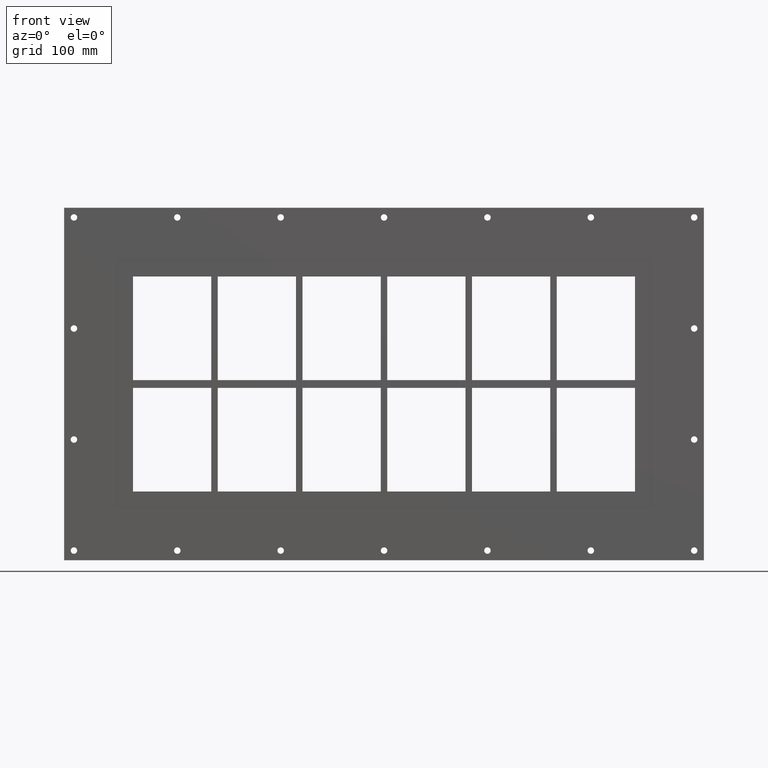
[diagram: clean part render]
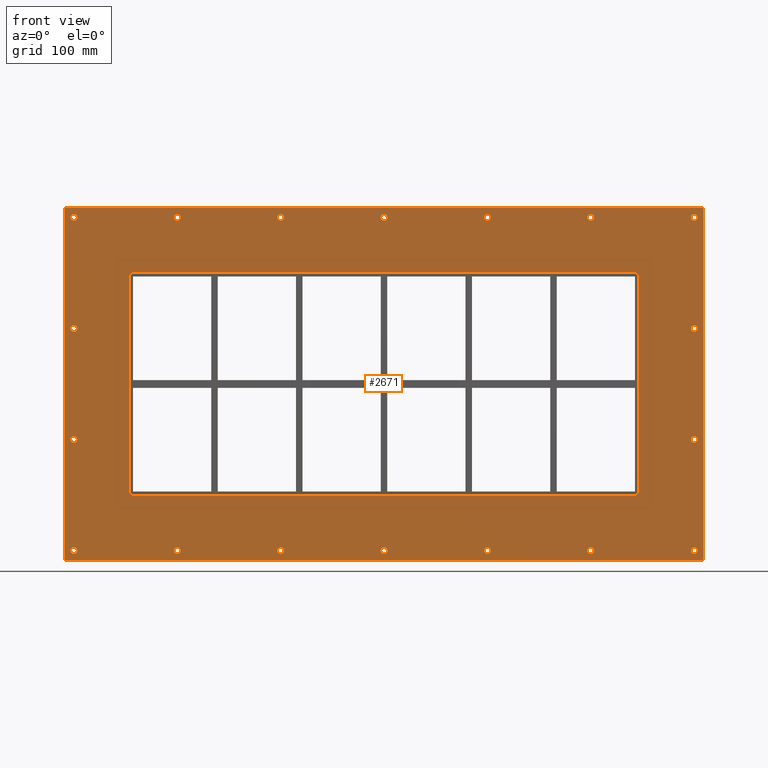
[diagram: same view with one face highlighted and labeled with its STEP entity id]
A machine part, front view. The second image highlights one B-rep face of the part: STEP entity #2671.
In plain terms, the highlighted planar face has unit normal (0, 1, 0).
Its self-contained STEP definition (entity closure, byte-faithful):
#84=CARTESIAN_POINT('',(-472.50000000000006,0.0,-256.5));
#85=VERTEX_POINT('',#84);
#86=CARTESIAN_POINT('',(-477.50000000000006,0.0,-256.5));
#87=DIRECTION('',(0.0,1.0,0.0));
#88=DIRECTION('',(1.0,0.0,0.0));
#89=AXIS2_PLACEMENT_3D('',#86,#87,#88);
#90=CIRCLE('',#89,5.0);
#91=EDGE_CURVE('',#85,#85,#90,.T.);
#112=CARTESIAN_POINT('',(482.69999999999987,0.0,-85.499999999999943));
#113=VERTEX_POINT('',#112);
#114=CARTESIAN_POINT('',(477.69999999999987,0.0,-85.499999999999943));
#115=DIRECTION('',(0.0,1.0,0.0));
#116=DIRECTION('',(1.0,0.0,0.0));
#117=AXIS2_PLACEMENT_3D('',#114,#115,#116);
#118=CIRCLE('',#117,5.0);
#119=EDGE_CURVE('',#113,#113,#118,.T.);
#140=CARTESIAN_POINT('',(-472.50000000000006,0.0,-85.499999999999943));
#141=VERTEX_POINT('',#140);
#142=CARTESIAN_POINT('',(-477.50000000000006,0.0,-85.499999999999943));
#143=DIRECTION('',(0.0,1.0,0.0));
#144=DIRECTION('',(1.0,0.0,0.0));
#145=AXIS2_PLACEMENT_3D('',#142,#143,#144);
#146=CIRCLE('',#145,5.0);
#147=EDGE_CURVE('',#141,#141,#146,.T.);
#168=CARTESIAN_POINT('',(482.69999999999987,0.0,85.500000000000043));
#169=VERTEX_POINT('',#168);
#170=CARTESIAN_POINT('',(477.69999999999987,0.0,85.500000000000043));
#171=DIRECTION('',(0.0,1.0,0.0));
#172=DIRECTION('',(1.0,0.0,0.0));
#173=AXIS2_PLACEMENT_3D('',#170,#171,#172);
#174=CIRCLE('',#173,5.0);
#175=EDGE_CURVE('',#169,#169,#174,.T.);
#196=CARTESIAN_POINT('',(-472.50000000000006,0.0,85.500000000000043));
#197=VERTEX_POINT('',#196);
#198=CARTESIAN_POINT('',(-477.50000000000006,0.0,85.500000000000043));
#199=DIRECTION('',(0.0,1.0,0.0));
#200=DIRECTION('',(1.0,0.0,0.0));
#201=AXIS2_PLACEMENT_3D('',#198,#199,#200);
#202=CIRCLE('',#201,5.0);
#203=EDGE_CURVE('',#197,#197,#202,.T.);
#224=CARTESIAN_POINT('',(-313.30000000000007,0.0,256.5));
#225=VERTEX_POINT('',#224);
#226=CARTESIAN_POINT('',(-318.30000000000007,0.0,256.5));
#227=DIRECTION('',(0.0,1.0,0.0));
#228=DIRECTION('',(1.0,0.0,0.0));
#229=AXIS2_PLACEMENT_3D('',#226,#227,#228);
#230=CIRCLE('',#229,5.0);
#231=EDGE_CURVE('',#225,#225,#230,.T.);
#252=CARTESIAN_POINT('',(-313.30000000000007,0.0,-256.5));
#253=VERTEX_POINT('',#252);
#254=CARTESIAN_POINT('',(-318.30000000000007,0.0,-256.5));
#255=DIRECTION('',(0.0,1.0,0.0));
#256=DIRECTION('',(1.0,0.0,0.0));
#257=AXIS2_PLACEMENT_3D('',#254,#255,#256);
#258=CIRCLE('',#257,5.0);
#259=EDGE_CURVE('',#253,#253,#258,.T.);
#280=CARTESIAN_POINT('',(-154.10000000000008,0.0,256.5));
#281=VERTEX_POINT('',#280);
#282=CARTESIAN_POINT('',(-159.10000000000008,0.0,256.5));
#283=DIRECTION('',(0.0,1.0,0.0));
#284=DIRECTION('',(1.0,0.0,0.0));
#285=AXIS2_PLACEMENT_3D('',#282,#283,#284);
#286=CIRCLE('',#285,5.0);
#287=EDGE_CURVE('',#281,#281,#286,.T.);
#308=CARTESIAN_POINT('',(-154.10000000000008,0.0,-256.5));
#309=VERTEX_POINT('',#308);
#310=CARTESIAN_POINT('',(-159.10000000000008,0.0,-256.5));
#311=DIRECTION('',(0.0,1.0,0.0));
#312=DIRECTION('',(1.0,0.0,0.0));
#313=AXIS2_PLACEMENT_3D('',#310,#311,#312);
#314=CIRCLE('',#313,5.0);
#315=EDGE_CURVE('',#309,#309,#314,.T.);
#336=CARTESIAN_POINT('',(5.099999999999927,0.0,256.5));
#337=VERTEX_POINT('',#336);
#338=CARTESIAN_POINT('',(0.099999999999927,0.0,256.5));
#339=DIRECTION('',(0.0,1.0,0.0));
#340=DIRECTION('',(1.0,0.0,0.0));
#341=AXIS2_PLACEMENT_3D('',#338,#339,#340);
#342=CIRCLE('',#341,5.0);
#343=EDGE_CURVE('',#337,#337,#342,.T.);
#364=CARTESIAN_POINT('',(5.099999999999927,0.0,-256.5));
#365=VERTEX_POINT('',#364);
#366=CARTESIAN_POINT('',(0.099999999999927,0.0,-256.5));
#367=DIRECTION('',(0.0,1.0,0.0));
#368=DIRECTION('',(1.0,0.0,0.0));
#369=AXIS2_PLACEMENT_3D('',#366,#367,#368);
#370=CIRCLE('',#369,5.0);
#371=EDGE_CURVE('',#365,#365,#370,.T.);
#392=CARTESIAN_POINT('',(164.29999999999984,0.0,256.5));
#393=VERTEX_POINT('',#392);
#394=CARTESIAN_POINT('',(159.29999999999987,0.0,256.5));
#395=DIRECTION('',(0.0,1.0,0.0));
#396=DIRECTION('',(1.0,0.0,0.0));
#397=AXIS2_PLACEMENT_3D('',#394,#395,#396);
#398=CIRCLE('',#397,5.0);
#399=EDGE_CURVE('',#393,#393,#398,.T.);
#420=CARTESIAN_POINT('',(164.29999999999984,0.0,-256.5));
#421=VERTEX_POINT('',#420);
#422=CARTESIAN_POINT('',(159.29999999999987,0.0,-256.5));
#423=DIRECTION('',(0.0,1.0,0.0));
#424=DIRECTION('',(1.0,0.0,0.0));
#425=AXIS2_PLACEMENT_3D('',#422,#423,#424);
#426=CIRCLE('',#425,5.0);
#427=EDGE_CURVE('',#421,#421,#426,.T.);
#448=CARTESIAN_POINT('',(323.49999999999989,0.0,256.5));
#449=VERTEX_POINT('',#448);
#450=CARTESIAN_POINT('',(318.49999999999989,0.0,256.5));
#451=DIRECTION('',(0.0,1.0,0.0));
#452=DIRECTION('',(1.0,0.0,0.0));
#453=AXIS2_PLACEMENT_3D('',#450,#451,#452);
#454=CIRCLE('',#453,5.0);
#455=EDGE_CURVE('',#449,#449,#454,.T.);
#476=CARTESIAN_POINT('',(323.49999999999989,0.0,-256.5));
#477=VERTEX_POINT('',#476);
#478=CARTESIAN_POINT('',(318.49999999999989,0.0,-256.5));
#479=DIRECTION('',(0.0,1.0,0.0));
#480=DIRECTION('',(1.0,0.0,0.0));
#481=AXIS2_PLACEMENT_3D('',#478,#479,#480);
#482=CIRCLE('',#481,5.0);
#483=EDGE_CURVE('',#477,#477,#482,.T.);
#504=CARTESIAN_POINT('',(482.69999999999987,0.0,-256.5));
#505=VERTEX_POINT('',#504);
#506=CARTESIAN_POINT('',(477.69999999999987,0.0,-256.5));
#507=DIRECTION('',(0.0,1.0,0.0));
#508=DIRECTION('',(1.0,0.0,0.0));
#509=AXIS2_PLACEMENT_3D('',#506,#507,#508);
#510=CIRCLE('',#509,5.0);
#511=EDGE_CURVE('',#505,#505,#510,.T.);
#532=CARTESIAN_POINT('',(-472.50000000000006,0.0,256.5));
#533=VERTEX_POINT('',#532);
#534=CARTESIAN_POINT('',(-477.50000000000006,0.0,256.5));
#535=DIRECTION('',(0.0,1.0,0.0));
#536=DIRECTION('',(1.0,0.0,0.0));
#537=AXIS2_PLACEMENT_3D('',#534,#535,#536);
#538=CIRCLE('',#537,5.0);
#539=EDGE_CURVE('',#533,#533,#538,.T.);
#560=CARTESIAN_POINT('',(482.69999999999987,0.0,256.5));
#561=VERTEX_POINT('',#560);
#562=CARTESIAN_POINT('',(477.69999999999987,0.0,256.5));
#563=DIRECTION('',(0.0,1.0,0.0));
#564=DIRECTION('',(1.0,0.0,0.0));
#565=AXIS2_PLACEMENT_3D('',#562,#563,#564);
#566=CIRCLE('',#565,5.0);
#567=EDGE_CURVE('',#561,#561,#566,.T.);
#2508=CARTESIAN_POINT('',(0.0,0.0,1.747293E-014));
#2509=DIRECTION('',(0.0,1.0,0.0));
#2510=DIRECTION('',(0.0,0.0,1.0));
#2511=AXIS2_PLACEMENT_3D('',#2508,#2509,#2510);
#2512=PLANE('',#2511);
#2513=CARTESIAN_POINT('',(-492.50000000000006,0.0,271.50000000000006));
#2514=VERTEX_POINT('',#2513);
#2515=CARTESIAN_POINT('',(492.50000000000006,0.0,271.50000000000006));
#2516=VERTEX_POINT('',#2515);
#2517=CARTESIAN_POINT('',(-492.50000000000006,0.0,271.50000000000006));
#2518=DIRECTION('',(1.0,0.0,0.0));
#2519=VECTOR('',#2518,985.00000000000011);
#2520=LINE('',#2517,#2519);
#2521=EDGE_CURVE('',#2514,#2516,#2520,.T.);
#2522=ORIENTED_EDGE('',*,*,#2521,.F.);
#2523=CARTESIAN_POINT('',(-492.50000000000006,0.0,-271.5));
#2524=VERTEX_POINT('',#2523);
#2525=CARTESIAN_POINT('',(-492.50000000000006,0.0,-271.5));
#2526=DIRECTION('',(0.0,0.0,1.0));
#2527=VECTOR('',#2526,543.00000000000011);
#2528=LINE('',#2525,#2527);
#2529=EDGE_CURVE('',#2524,#2514,#2528,.T.);
#2530=ORIENTED_EDGE('',*,*,#2529,.F.);
#2531=CARTESIAN_POINT('',(492.50000000000006,0.0,-271.5));
#2532=VERTEX_POINT('',#2531);
#2533=CARTESIAN_POINT('',(492.50000000000006,0.0,-271.5));
#2534=DIRECTION('',(-1.0,0.0,0.0));
#2535=VECTOR('',#2534,985.00000000000011);
#2536=LINE('',#2533,#2535);
#2537=EDGE_CURVE('',#2532,#2524,#2536,.T.);
#2538=ORIENTED_EDGE('',*,*,#2537,.F.);
#2539=CARTESIAN_POINT('',(492.50000000000006,0.0,271.50000000000006));
#2540=DIRECTION('',(0.0,0.0,-1.0));
#2541=VECTOR('',#2540,543.00000000000011);
#2542=LINE('',#2539,#2541);
#2543=EDGE_CURVE('',#2516,#2532,#2542,.T.);
#2544=ORIENTED_EDGE('',*,*,#2543,.F.);
#2545=EDGE_LOOP('',(#2522,#2530,#2538,#2544));
#2546=FACE_OUTER_BOUND('',#2545,.T.);
#2547=ORIENTED_EDGE('',*,*,#91,.T.);
#2548=EDGE_LOOP('',(#2547));
#2549=FACE_BOUND('',#2548,.T.);
#2550=ORIENTED_EDGE('',*,*,#119,.T.);
#2551=EDGE_LOOP('',(#2550));
#2552=FACE_BOUND('',#2551,.T.);
#2553=ORIENTED_EDGE('',*,*,#147,.T.);
#2554=EDGE_LOOP('',(#2553));
#2555=FACE_BOUND('',#2554,.T.);
#2556=ORIENTED_EDGE('',*,*,#175,.T.);
#2557=EDGE_LOOP('',(#2556));
#2558=FACE_BOUND('',#2557,.T.);
#2559=ORIENTED_EDGE('',*,*,#203,.T.);
#2560=EDGE_LOOP('',(#2559));
#2561=FACE_BOUND('',#2560,.T.);
#2562=ORIENTED_EDGE('',*,*,#231,.T.);
#2563=EDGE_LOOP('',(#2562));
#2564=FACE_BOUND('',#2563,.T.);
#2565=ORIENTED_EDGE('',*,*,#259,.T.);
#2566=EDGE_LOOP('',(#2565));
#2567=FACE_BOUND('',#2566,.T.);
#2568=ORIENTED_EDGE('',*,*,#287,.T.);
#2569=EDGE_LOOP('',(#2568));
#2570=FACE_BOUND('',#2569,.T.);
#2571=ORIENTED_EDGE('',*,*,#315,.T.);
#2572=EDGE_LOOP('',(#2571));
#2573=FACE_BOUND('',#2572,.T.);
#2574=ORIENTED_EDGE('',*,*,#343,.T.);
#2575=EDGE_LOOP('',(#2574));
#2576=FACE_BOUND('',#2575,.T.);
#2577=ORIENTED_EDGE('',*,*,#371,.T.);
#2578=EDGE_LOOP('',(#2577));
#2579=FACE_BOUND('',#2578,.T.);
#2580=ORIENTED_EDGE('',*,*,#399,.T.);
#2581=EDGE_LOOP('',(#2580));
#2582=FACE_BOUND('',#2581,.T.);
#2583=ORIENTED_EDGE('',*,*,#427,.T.);
#2584=EDGE_LOOP('',(#2583));
#2585=FACE_BOUND('',#2584,.T.);
#2586=ORIENTED_EDGE('',*,*,#455,.T.);
#2587=EDGE_LOOP('',(#2586));
#2588=FACE_BOUND('',#2587,.T.);
#2589=ORIENTED_EDGE('',*,*,#483,.T.);
#2590=EDGE_LOOP('',(#2589));
#2591=FACE_BOUND('',#2590,.T.);
#2592=ORIENTED_EDGE('',*,*,#511,.T.);
#2593=EDGE_LOOP('',(#2592));
#2594=FACE_BOUND('',#2593,.T.);
#2595=ORIENTED_EDGE('',*,*,#539,.T.);
#2596=EDGE_LOOP('',(#2595));
#2597=FACE_BOUND('',#2596,.T.);
#2598=ORIENTED_EDGE('',*,*,#567,.T.);
#2599=EDGE_LOOP('',(#2598));
#2600=FACE_BOUND('',#2599,.T.);
#2601=CARTESIAN_POINT('',(-392.50000000000011,0.0,-165.50000000000006));
#2602=VERTEX_POINT('',#2601);
#2603=CARTESIAN_POINT('',(-386.50000000000006,0.0,-171.50000000000006));
#2604=VERTEX_POINT('',#2603);
#2605=CARTESIAN_POINT('',(-386.50000000000006,0.0,-165.50000000000006));
#2606=DIRECTION('',(0.0,-1.0,0.0));
#2607=DIRECTION('',(-0.707106781186552,0.0,-0.707106781186543));
#2608=AXIS2_PLACEMENT_3D('',#2605,#2606,#2607);
#2609=CIRCLE('',#2608,6.0);
#2610=EDGE_CURVE('',#2602,#2604,#2609,.T.);
#2611=ORIENTED_EDGE('',*,*,#2610,.F.);
#2612=CARTESIAN_POINT('',(-392.50000000000011,0.0,165.49999999999997));
#2613=VERTEX_POINT('',#2612);
#2614=CARTESIAN_POINT('',(-392.50000000000011,0.0,165.49999999999997));
#2615=DIRECTION('',(0.0,0.0,-1.0));
#2616=VECTOR('',#2615,331.0);
#2617=LINE('',#2614,#2616);
#2618=EDGE_CURVE('',#2613,#2602,#2617,.T.);
#2619=ORIENTED_EDGE('',*,*,#2618,.F.);
#2620=CARTESIAN_POINT('',(-386.50000000000023,0.0,171.5));
#2621=VERTEX_POINT('',#2620);
#2622=CARTESIAN_POINT('',(-386.50000000000023,0.0,165.49999999999997));
#2623=DIRECTION('',(0.0,-1.0,0.0));
#2624=DIRECTION('',(-0.707106781186543,0.0,0.707106781186552));
#2625=AXIS2_PLACEMENT_3D('',#2622,#2623,#2624);
#2626=CIRCLE('',#2625,6.000000000000001);
#2627=EDGE_CURVE('',#2621,#2613,#2626,.T.);
#2628=ORIENTED_EDGE('',*,*,#2627,.F.);
#2629=CARTESIAN_POINT('',(386.49999999999989,0.0,171.5));
#2630=VERTEX_POINT('',#2629);
#2631=CARTESIAN_POINT('',(386.49999999999994,0.0,171.5));
#2632=DIRECTION('',(-1.0,0.0,0.0));
#2633=VECTOR('',#2632,773.00000000000011);
#2634=LINE('',#2631,#2633);
#2635=EDGE_CURVE('',#2630,#2621,#2634,.T.);
#2636=ORIENTED_EDGE('',*,*,#2635,.F.);
#2637=CARTESIAN_POINT('',(392.5,0.0,165.49999999999997));
#2638=VERTEX_POINT('',#2637);
#2639=CARTESIAN_POINT('',(386.49999999999989,0.0,165.49999999999997));
#2640=DIRECTION('',(0.0,-1.0,0.0));
#2641=DIRECTION('',(0.707106781186552,0.0,0.707106781186543));
#2642=AXIS2_PLACEMENT_3D('',#2639,#2640,#2641);
#2643=CIRCLE('',#2642,6.0);
#2644=EDGE_CURVE('',#2638,#2630,#2643,.T.);
#2645=ORIENTED_EDGE('',*,*,#2644,.F.);
#2646=CARTESIAN_POINT('',(392.5,0.0,-165.50000000000006));
#2647=VERTEX_POINT('',#2646);
#2648=CARTESIAN_POINT('',(392.5,0.0,-165.50000000000003));
#2649=DIRECTION('',(0.0,0.0,1.0));
#2650=VECTOR('',#2649,331.0);
#2651=LINE('',#2648,#2650);
#2652=EDGE_CURVE('',#2647,#2638,#2651,.T.);
#2653=ORIENTED_EDGE('',*,*,#2652,.F.);
#2654=CARTESIAN_POINT('',(386.50000000000006,0.0,-171.50000000000006));
#2655=VERTEX_POINT('',#2654);
#2656=CARTESIAN_POINT('',(386.50000000000006,0.0,-165.50000000000006));
#2657=DIRECTION('',(0.0,-1.0,0.0));
#2658=DIRECTION('',(0.707106781186543,0.0,-0.707106781186552));
#2659=AXIS2_PLACEMENT_3D('',#2656,#2657,#2658);
#2660=CIRCLE('',#2659,6.000000000000001);
#2661=EDGE_CURVE('',#2655,#2647,#2660,.T.);
#2662=ORIENTED_EDGE('',*,*,#2661,.F.);
#2663=CARTESIAN_POINT('',(-386.5,0.0,-171.50000000000006));
#2664=DIRECTION('',(1.0,0.0,0.0));
#2665=VECTOR('',#2664,773.0);
#2666=LINE('',#2663,#2665);
#2667=EDGE_CURVE('',#2604,#2655,#2666,.T.);
#2668=ORIENTED_EDGE('',*,*,#2667,.F.);
#2669=EDGE_LOOP('',(#2611,#2619,#2628,#2636,#2645,#2653,#2662,#2668));
#2670=FACE_BOUND('',#2669,.T.);
#2671=ADVANCED_FACE('',(#2546,#2549,#2552,#2555,#2558,#2561,#2564,#2567,#2570,#2573,#2576,#2579,#2582,#2585,#2588,#2591,#2594,#2597,#2600,#2670),#2512,.F.);